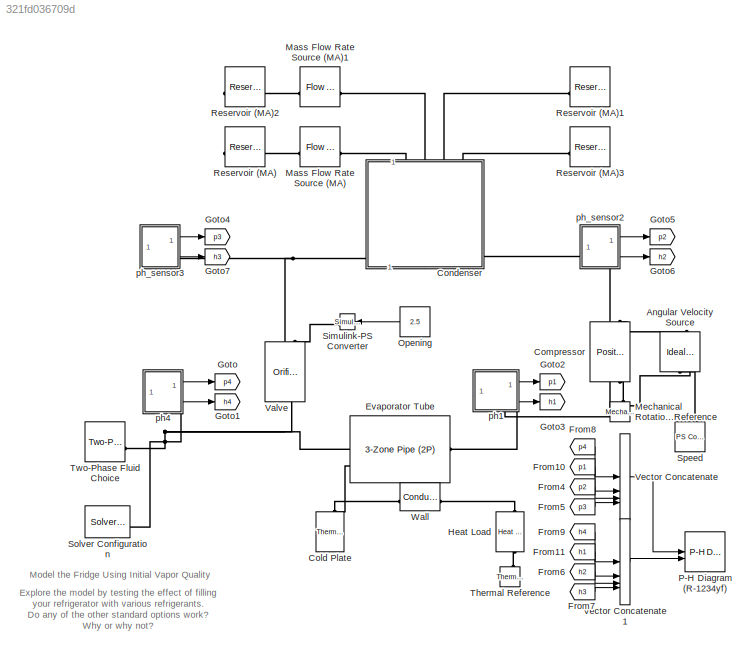
MODEL slx_321fd036709d
KIND model
CONFIG AbsTol = 1e-3
CONFIG EnableMultiTasking = off
CONFIG FixedStep = auto
CONFIG MaxStep = auto
CONFIG MinStep = auto
CONFIG RelTol = 1e-3
CONFIG SampleTimeConstraint = Unconstrained
CONFIG SolverName = VariableStepAuto
CONFIG StartTime = 0.0
CONFIG StopTime = 5000
BLOCK [Reference] Angular Velocity Source  REF=fl_lib/Mechanical/Mechanical Sources/Ideal Angular
Velocity Source
  NameLocation = right
  SourceBlock = fl_lib/Mechanical/Mechanical Sources/Ideal Angular\nVelocity Source
  SourceType = Ideal Angular\nVelocity Source
BLOCK [Reference] Cold Plate  REF=fl_lib/Thermal/Thermal Elements/Thermal Mass
  NameLocation = right
  SourceBlock = fl_lib/Thermal/Thermal Elements/Thermal Mass
  SourceType = Thermal Mass
BLOCK [Reference] Compressor  REF=SimscapeFluids_lib/Two-Phase Fluid/Fluid Machines/Positive-Displacement
Compressor (2P)
  NameLocation = left
  SourceBlock = SimscapeFluids_lib/Two-Phase Fluid/Fluid Machines/Positive-Displacement\nCompressor (2P)
  SourceType = Positive-Displacement\nCompressor (2P)
BLOCK [SubSystem] Condenser
  IC_spec = Vapor Quality
  NameLocation = right
  ReferencedSubsystem = Condenser_2Pass
  energy_spec = foundation.enum.energy_spec.quality
  h_init = h0_cond
  h_init_conf = compiletime
  h_init_unit = kJ/kg
  p_init = p0
  p_init_conf = compiletime
  p_init_unit = kPa
  x_init = x0
  x_init_conf = compiletime
BLOCK [Reference] Evaporator Tube  REF=SimscapeFluids_lib/Two-Phase Fluid/Pipes & Fittings/3-Zone Pipe (2P)
  NameLocation = top
  SourceBlock = SimscapeFluids_lib/Two-Phase Fluid/Pipes & Fittings/3-Zone Pipe (2P)
  SourceType = 3-Zone Pipe (2P)
BLOCK [From] From10
  GotoTag = p1
BLOCK [From] From11
  GotoTag = h1
BLOCK [From] From4
  GotoTag = p2
BLOCK [From] From5
  GotoTag = p3
BLOCK [From] From6
  GotoTag = h2
BLOCK [From] From7
  GotoTag = h3
BLOCK [From] From8
  GotoTag = p4
BLOCK [From] From9
  GotoTag = h4
BLOCK [Goto] Goto
  GotoTag = p4
BLOCK [Goto] Goto1
  GotoTag = h4
BLOCK [Goto] Goto2
  GotoTag = p1
BLOCK [Goto] Goto3
  GotoTag = h1
BLOCK [Goto] Goto4
  GotoTag = p3
BLOCK [Goto] Goto5
  GotoTag = p2
BLOCK [Goto] Goto6
  GotoTag = h2
BLOCK [Goto] Goto7
  GotoTag = h3
BLOCK [Reference] Heat Load  REF=fl_lib/Thermal/Thermal Sources/Heat Flow Rate
Source
  NameLocation = left
  SourceBlock = fl_lib/Thermal/Thermal Sources/Heat Flow Rate\nSource
  SourceType = Heat Flow Rate\nSource
BLOCK [Reference] Mass Flow Rate Source (MA)  REF=fl_lib/Moist Air/Sources/Flow Rate Source
(MA)
  NameLocation = top
  SourceBlock = fl_lib/Moist Air/Sources/Flow Rate Source\n(MA)
  SourceType = Flow Rate Source\n(MA)
BLOCK [Reference] Mass Flow Rate Source (MA)1  REF=fl_lib/Moist Air/Sources/Flow Rate Source
(MA)
  NameLocation = top
  SourceBlock = fl_lib/Moist Air/Sources/Flow Rate Source\n(MA)
  SourceType = Flow Rate Source\n(MA)
BLOCK [Reference] Mechanical Rotational Reference  REF=fl_lib/Mechanical/Rotational Elements/Mechanical
Rotational Reference
  NameLocation = right
  SourceBlock = fl_lib/Mechanical/Rotational Elements/Mechanical\nRotational Reference
  SourceType = Mechanical\nRotational Reference
BLOCK [Constant] Opening
  Value = 2.5
BLOCK [Reference] P-H Diagram (R-1234yf)  REF=SimscapeFluids_lib/Two-Phase Fluid/Utilities/P-H Diagram (2P)
  SourceBlock = SimscapeFluids_lib/Two-Phase Fluid/Utilities/P-H Diagram (2P)
  SourceType = P-H Diagram (2P)
  UserDataPersistent = on
BLOCK [Reference] Reservoir (MA)  REF=fl_lib/Moist Air/Elements/Reservoir (MA)
  NameLocation = top
  SourceBlock = fl_lib/Moist Air/Elements/Reservoir (MA)
  SourceType = Reservoir (MA)
BLOCK [Reference] Reservoir (MA)1  REF=fl_lib/Moist Air/Elements/Reservoir (MA)
  SourceBlock = fl_lib/Moist Air/Elements/Reservoir (MA)
  SourceType = Reservoir (MA)
BLOCK [Reference] Reservoir (MA)2  REF=fl_lib/Moist Air/Elements/Reservoir (MA)
  NameLocation = top
  SourceBlock = fl_lib/Moist Air/Elements/Reservoir (MA)
  SourceType = Reservoir (MA)
BLOCK [Reference] Reservoir (MA)3  REF=fl_lib/Moist Air/Elements/Reservoir (MA)
  SourceBlock = fl_lib/Moist Air/Elements/Reservoir (MA)
  SourceType = Reservoir (MA)
BLOCK [Reference] Simulink-PS Converter  REF=nesl_utility/Simulink-PS
Converter
  AttributesFormatString = %<Unit>
  SourceBlock = nesl_utility/Simulink-PS\nConverter
  SourceType = Simulink-PS\nConverter
BLOCK [Reference] Solver Configuration  REF=nesl_utility/Solver
Configuration
  SourceBlock = nesl_utility/Solver\nConfiguration
  SourceType = Solver\nConfiguration
BLOCK [Reference] Speed  REF=fl_lib/Physical Signals/Sources/PS Constant
  SourceBlock = fl_lib/Physical Signals/Sources/PS Constant
  SourceType = PS Constant
BLOCK [Reference] Thermal Reference  REF=fl_lib/Thermal/Thermal Elements/Thermal Reference
  NameLocation = right
  SourceBlock = fl_lib/Thermal/Thermal Elements/Thermal Reference
  SourceType = Thermal Reference
BLOCK [Reference] Two-Phase Fluid Choice  REF=SimscapeFluids_lib/Two-Phase Fluid/Utilities/Two-Phase Fluid
Predefined
Properties (2P)
  SourceBlock = SimscapeFluids_lib/Two-Phase Fluid/Utilities/Two-Phase Fluid\nPredefined\nProperties (2P)
  SourceType = Two-Phase Fluid\nPredefined\nProperties (2P)
BLOCK [Reference] Valve  REF=SimscapeFluids_lib/Two-Phase Fluid/Valves & Orifices/Orifice (2P)
  NameLocation = right
  SourceBlock = SimscapeFluids_lib/Two-Phase Fluid/Valves & Orifices/Orifice (2P)
  SourceType = Orifice (2P)
BLOCK [Concatenate] Vector Concatenate
  NumInputs = 4
BLOCK [Concatenate] Vector Concatenate1
  NumInputs = 4
BLOCK [Reference] Wall  REF=fl_lib/Thermal/Thermal Elements/Conductive Heat
Transfer
  SourceBlock = fl_lib/Thermal/Thermal Elements/Conductive Heat\nTransfer
  SourceType = Conductive Heat\nTransfer
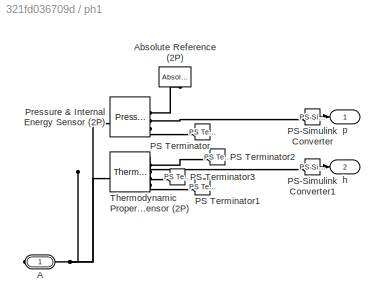
BLOCK [SubSystem] ph1
  NameLocation = top
  PortSchema = {"entries":[{"content":{"sides":[{"content":{"connectorIds":[]},"type":"ConnectorPlacement.EquallySpacedRectSide","uuid":"09a2fde7-9514-415f-ad1a-2358fbc90122"},{"content":{"connectorIds":["Out1","Out2"],"side":"RIGHT"},"type":"ConnectorPlacement.EquallySpacedRectSide","uuid":"1a58e595-65c2-481f-a4c6-044a1080df7a"},{"content":{"connectorIds":[],"side":"TOP"},"type":"ConnectorPlacement.EquallySpace...<+394ch>
BLOCK [PMIOPort] ph1/A
  Side = Right
BLOCK [Reference] ph1/Absolute Reference (2P)  REF=fl_lib/Two-Phase Fluid/Elements/Absolute Reference
(2P)
  NameLocation = left
  SourceBlock = fl_lib/Two-Phase Fluid/Elements/Absolute Reference\n(2P)
  SourceType = Absolute Reference\n(2P)
BLOCK [Reference] ph1/PS Terminator  REF=fl_lib/Physical Signals/Sinks/PS Terminator
  SourceBlock = fl_lib/Physical Signals/Sinks/PS Terminator
  SourceType = PS Terminator
BLOCK [Reference] ph1/PS Terminator1  REF=fl_lib/Physical Signals/Sinks/PS Terminator
  SourceBlock = fl_lib/Physical Signals/Sinks/PS Terminator
  SourceType = PS Terminator
BLOCK [Reference] ph1/PS Terminator2  REF=fl_lib/Physical Signals/Sinks/PS Terminator
  SourceBlock = fl_lib/Physical Signals/Sinks/PS Terminator
  SourceType = PS Terminator
BLOCK [Reference] ph1/PS Terminator3  REF=fl_lib/Physical Signals/Sinks/PS Terminator
  SourceBlock = fl_lib/Physical Signals/Sinks/PS Terminator
  SourceType = PS Terminator
BLOCK [Reference] ph1/PS-Simulink Converter  REF=nesl_utility/PS-Simulink
Converter
  SourceBlock = nesl_utility/PS-Simulink\nConverter
  SourceType = PS-Simulink\nConverter
BLOCK [Reference] ph1/PS-Simulink Converter1  REF=nesl_utility/PS-Simulink
Converter
  SourceBlock = nesl_utility/PS-Simulink\nConverter
  SourceType = PS-Simulink\nConverter
BLOCK [Reference] ph1/Pressure & Internal Energy Sensor (2P)  REF=fl_lib/Two-Phase Fluid/Sensors/Pressure,
Temperature &
Internal Energy
Sensor (2P)
  SourceBlock = fl_lib/Two-Phase Fluid/Sensors/Pressure,\nTemperature &\nInternal Energy\nSensor (2P)
  SourceType = Pressure,\nTemperature &\nInternal Energy\nSensor (2P)
BLOCK [Reference] ph1/Thermodynamic Properties Sensor (2P)  REF=fl_lib/Two-Phase Fluid/Sensors/Thermodynamic
Properties Sensor
(2P)
  SourceBlock = fl_lib/Two-Phase Fluid/Sensors/Thermodynamic\nProperties Sensor\n(2P)
  SourceType = Thermodynamic\nProperties Sensor\n(2P)
BLOCK [Outport] ph1/h
  Port = 2
BLOCK [Outport] ph1/p
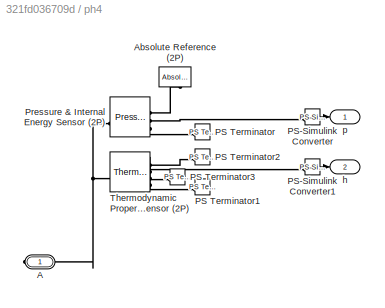
BLOCK [SubSystem] ph4
  NameLocation = top
  PortSchema = {"entries":[{"content":{"sides":[{"content":{"connectorIds":[]},"type":"ConnectorPlacement.EquallySpacedRectSide","uuid":"a2386ea4-012f-4d06-9e16-de8034e56d49"},{"content":{"connectorIds":["Out1","Out2"],"side":"RIGHT"},"type":"ConnectorPlacement.EquallySpacedRectSide","uuid":"4fc9eed4-9b91-4b18-836c-5d3d8d2a2391"},{"content":{"connectorIds":[],"side":"TOP"},"type":"ConnectorPlacement.EquallySpace...<+394ch>
BLOCK [PMIOPort] ph4/A
  Side = Right
BLOCK [Reference] ph4/Absolute Reference (2P)  REF=fl_lib/Two-Phase Fluid/Elements/Absolute Reference
(2P)
  NameLocation = left
  SourceBlock = fl_lib/Two-Phase Fluid/Elements/Absolute Reference\n(2P)
  SourceType = Absolute Reference\n(2P)
BLOCK [Reference] ph4/PS Terminator  REF=fl_lib/Physical Signals/Sinks/PS Terminator
  SourceBlock = fl_lib/Physical Signals/Sinks/PS Terminator
  SourceType = PS Terminator
BLOCK [Reference] ph4/PS Terminator1  REF=fl_lib/Physical Signals/Sinks/PS Terminator
  SourceBlock = fl_lib/Physical Signals/Sinks/PS Terminator
  SourceType = PS Terminator
BLOCK [Reference] ph4/PS Terminator2  REF=fl_lib/Physical Signals/Sinks/PS Terminator
  SourceBlock = fl_lib/Physical Signals/Sinks/PS Terminator
  SourceType = PS Terminator
BLOCK [Reference] ph4/PS Terminator3  REF=fl_lib/Physical Signals/Sinks/PS Terminator
  SourceBlock = fl_lib/Physical Signals/Sinks/PS Terminator
  SourceType = PS Terminator
BLOCK [Reference] ph4/PS-Simulink Converter  REF=nesl_utility/PS-Simulink
Converter
  SourceBlock = nesl_utility/PS-Simulink\nConverter
  SourceType = PS-Simulink\nConverter
BLOCK [Reference] ph4/PS-Simulink Converter1  REF=nesl_utility/PS-Simulink
Converter
  SourceBlock = nesl_utility/PS-Simulink\nConverter
  SourceType = PS-Simulink\nConverter
BLOCK [Reference] ph4/Pressure & Internal Energy Sensor (2P)  REF=fl_lib/Two-Phase Fluid/Sensors/Pressure,
Temperature &
Internal Energy
Sensor (2P)
  SourceBlock = fl_lib/Two-Phase Fluid/Sensors/Pressure,\nTemperature &\nInternal Energy\nSensor (2P)
  SourceType = Pressure,\nTemperature &\nInternal Energy\nSensor (2P)
BLOCK [Reference] ph4/Thermodynamic Properties Sensor (2P)  REF=fl_lib/Two-Phase Fluid/Sensors/Thermodynamic
Properties Sensor
(2P)
  SourceBlock = fl_lib/Two-Phase Fluid/Sensors/Thermodynamic\nProperties Sensor\n(2P)
  SourceType = Thermodynamic\nProperties Sensor\n(2P)
BLOCK [Outport] ph4/h
  Port = 2
BLOCK [Outport] ph4/p
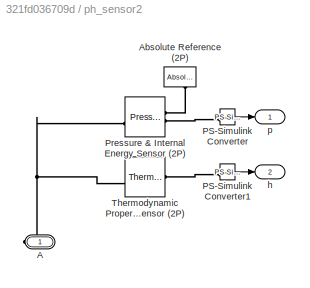
BLOCK [SubSystem] ph_sensor2
  NameLocation = top
  PortSchema = {"entries":[{"content":{"sides":[{"content":{"connectorIds":[]},"type":"ConnectorPlacement.EquallySpacedRectSide","uuid":"41884682-286e-4d7b-b79e-2bb874be6d6c"},{"content":{"connectorIds":["Out1","Out2"],"side":"RIGHT"},"type":"ConnectorPlacement.EquallySpacedRectSide","uuid":"e56675d9-2074-4825-bab9-53a77e88fae1"},{"content":{"connectorIds":[],"side":"TOP"},"type":"ConnectorPlacement.EquallySpace...<+394ch>
BLOCK [PMIOPort] ph_sensor2/A
  Side = Right
BLOCK [Reference] ph_sensor2/Absolute Reference (2P)  REF=fl_lib/Two-Phase Fluid/Elements/Absolute Reference
(2P)
  NameLocation = left
  SourceBlock = fl_lib/Two-Phase Fluid/Elements/Absolute Reference\n(2P)
  SourceType = Absolute Reference\n(2P)
BLOCK [Reference] ph_sensor2/PS-Simulink Converter  REF=nesl_utility/PS-Simulink
Converter
  AttributesFormatString = %<Unit>
  SourceBlock = nesl_utility/PS-Simulink\nConverter
  SourceType = PS-Simulink\nConverter
BLOCK [Reference] ph_sensor2/PS-Simulink Converter1  REF=nesl_utility/PS-Simulink
Converter
  AttributesFormatString = %<Unit>
  SourceBlock = nesl_utility/PS-Simulink\nConverter
  SourceType = PS-Simulink\nConverter
BLOCK [Reference] ph_sensor2/Pressure & Internal Energy Sensor (2P)  REF=fl_lib/Two-Phase Fluid/Sensors/Pressure,
Temperature &
Internal Energy
Sensor (2P)
  SourceBlock = fl_lib/Two-Phase Fluid/Sensors/Pressure,\nTemperature &\nInternal Energy\nSensor (2P)
  SourceType = Pressure,\nTemperature &\nInternal Energy\nSensor (2P)
BLOCK [Reference] ph_sensor2/Thermodynamic Properties Sensor (2P)  REF=fl_lib/Two-Phase Fluid/Sensors/Thermodynamic
Properties Sensor
(2P)
  SourceBlock = fl_lib/Two-Phase Fluid/Sensors/Thermodynamic\nProperties Sensor\n(2P)
  SourceType = Thermodynamic\nProperties Sensor\n(2P)
BLOCK [Outport] ph_sensor2/h
  Port = 2
BLOCK [Outport] ph_sensor2/p
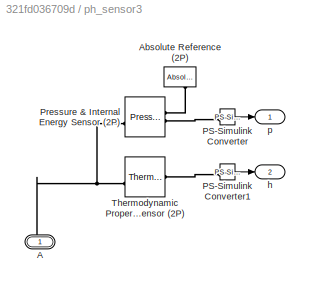
BLOCK [SubSystem] ph_sensor3
  NameLocation = top
  PortSchema = {"entries":[{"content":{"sides":[{"content":{"connectorIds":[]},"type":"ConnectorPlacement.EquallySpacedRectSide","uuid":"41884682-286e-4d7b-b79e-2bb874be6d6c"},{"content":{"connectorIds":["Out1","Out2"],"side":"RIGHT"},"type":"ConnectorPlacement.EquallySpacedRectSide","uuid":"e56675d9-2074-4825-bab9-53a77e88fae1"},{"content":{"connectorIds":[],"side":"TOP"},"type":"ConnectorPlacement.EquallySpace...<+394ch>
BLOCK [PMIOPort] ph_sensor3/A
  Side = Right
BLOCK [Reference] ph_sensor3/Absolute Reference (2P)  REF=fl_lib/Two-Phase Fluid/Elements/Absolute Reference
(2P)
  NameLocation = left
  SourceBlock = fl_lib/Two-Phase Fluid/Elements/Absolute Reference\n(2P)
  SourceType = Absolute Reference\n(2P)
BLOCK [Reference] ph_sensor3/PS-Simulink Converter  REF=nesl_utility/PS-Simulink
Converter
  AttributesFormatString = %<Unit>
  SourceBlock = nesl_utility/PS-Simulink\nConverter
  SourceType = PS-Simulink\nConverter
BLOCK [Reference] ph_sensor3/PS-Simulink Converter1  REF=nesl_utility/PS-Simulink
Converter
  AttributesFormatString = %<Unit>
  SourceBlock = nesl_utility/PS-Simulink\nConverter
  SourceType = PS-Simulink\nConverter
BLOCK [Reference] ph_sensor3/Pressure & Internal Energy Sensor (2P)  REF=fl_lib/Two-Phase Fluid/Sensors/Pressure,
Temperature &
Internal Energy
Sensor (2P)
  SourceBlock = fl_lib/Two-Phase Fluid/Sensors/Pressure,\nTemperature &\nInternal Energy\nSensor (2P)
  SourceType = Pressure,\nTemperature &\nInternal Energy\nSensor (2P)
BLOCK [Reference] ph_sensor3/Thermodynamic Properties Sensor (2P)  REF=fl_lib/Two-Phase Fluid/Sensors/Thermodynamic
Properties Sensor
(2P)
  SourceBlock = fl_lib/Two-Phase Fluid/Sensors/Thermodynamic\nProperties Sensor\n(2P)
  SourceType = Thermodynamic\nProperties Sensor\n(2P)
BLOCK [Outport] ph_sensor3/h
  Port = 2
BLOCK [Outport] ph_sensor3/p
ANNOTATION (root): Explore the model by testing the effect of filling your refrigerator with various refrigerants. Do any of the other standard options work? Why or why not?
ANNOTATION (root): Model the Fridge Using Initial Vapor Quality
LINE From10:1 -> Vector Concatenate:2
LINE From11:1 -> Vector Concatenate1:2
LINE From4:1 -> Vector Concatenate:3
LINE From5:1 -> Vector Concatenate:4
LINE From6:1 -> Vector Concatenate1:3
LINE From7:1 -> Vector Concatenate1:4
LINE From8:1 -> Vector Concatenate:1
LINE From9:1 -> Vector Concatenate1:1
LINE Opening:1 -> Simulink-PS Converter:1
LINE Vector Concatenate1:1 -> P-H Diagram (R-1234yf):2
LINE Vector Concatenate:1 -> P-H Diagram (R-1234yf):1
LINE ph1/PS-Simulink Converter1:1 -> ph1/h:1
LINE ph1/PS-Simulink Converter:1 -> ph1/p:1
LINE ph1:1 -> Goto2:1
LINE ph1:2 -> Goto3:1
LINE ph4/PS-Simulink Converter1:1 -> ph4/h:1
LINE ph4/PS-Simulink Converter:1 -> ph4/p:1
LINE ph4:1 -> Goto:1
LINE ph4:2 -> Goto1:1
LINE ph_sensor2/PS-Simulink Converter1:1 -> ph_sensor2/h:1
LINE ph_sensor2/PS-Simulink Converter:1 -> ph_sensor2/p:1
LINE ph_sensor2:1 -> Goto5:1
LINE ph_sensor2:2 -> Goto6:1
LINE ph_sensor3/PS-Simulink Converter1:1 -> ph_sensor3/h:1
LINE ph_sensor3/PS-Simulink Converter:1 -> ph_sensor3/p:1
LINE ph_sensor3:1 -> Goto4:1
LINE ph_sensor3:2 -> Goto7:1
PLINE Angular Velocity Source:LConn1 -- Compressor:RConn2
PLINE Angular Velocity Source:RConn1 -- Speed:RConn1
PNET net1: Angular Velocity Source:RConn2 -- Compressor:LConn2 -- Mechanical Rotational Reference:LConn1
PNET net2: Cold Plate:LConn1 -- Evaporator Tube:LConn2 -- Wall:LConn1
PNET net3: Compressor:LConn1 -- Evaporator Tube:RConn1 -- ph1:RConn1
PNET net4: Compressor:RConn1 -- Condenser:LConn2 -- ph_sensor2:RConn1
PNET net5: Condenser:LConn1 -- Valve:LConn1 -- ph_sensor3:RConn1
PLINE Condenser:RConn1 -- Mass Flow Rate Source (MA):RConn1
PLINE Condenser:RConn2 -- Mass Flow Rate Source (MA)1:RConn1
PLINE Condenser:RConn3 -- Reservoir (MA)1:LConn1
PLINE Condenser:RConn4 -- Reservoir (MA)3:LConn1
PNET net6: Evaporator Tube:LConn1 -- Solver Configuration:RConn1 -- Two-Phase Fluid Choice:RConn1 -- Valve:RConn1 -- ph4:RConn1
PLINE Heat Load:LConn1 -- Wall:RConn1
PLINE Heat Load:RConn1 -- Thermal Reference:LConn1
PLINE Mass Flow Rate Source (MA)1:LConn1 -- Reservoir (MA)2:LConn1
PLINE Mass Flow Rate Source (MA):LConn1 -- Reservoir (MA):LConn1
PLINE Simulink-PS Converter:RConn1 -- Valve:LConn2
PNET net7: ph1/A:RConn1 -- ph1/Pressure & Internal Energy Sensor (2P):LConn1 -- ph1/Thermodynamic Properties Sensor (2P):LConn1
PLINE ph1/Absolute Reference (2P):LConn1 -- ph1/Pressure & Internal Energy Sensor (2P):RConn1
PLINE ph1/PS Terminator1:LConn1 -- ph1/Thermodynamic Properties Sensor (2P):RConn4
PLINE ph1/PS Terminator2:LConn1 -- ph1/Thermodynamic Properties Sensor (2P):RConn1
PLINE ph1/PS Terminator3:LConn1 -- ph1/Thermodynamic Properties Sensor (2P):RConn3
PLINE ph1/PS Terminator:LConn1 -- ph1/Pressure & Internal Energy Sensor (2P):RConn3
PLINE ph1/PS-Simulink Converter1:LConn1 -- ph1/Thermodynamic Properties Sensor (2P):RConn2
PLINE ph1/PS-Simulink Converter:LConn1 -- ph1/Pressure & Internal Energy Sensor (2P):RConn2
PNET net8: ph4/A:RConn1 -- ph4/Pressure & Internal Energy Sensor (2P):LConn1 -- ph4/Thermodynamic Properties Sensor (2P):LConn1
PLINE ph4/Absolute Reference (2P):LConn1 -- ph4/Pressure & Internal Energy Sensor (2P):RConn1
PLINE ph4/PS Terminator1:LConn1 -- ph4/Thermodynamic Properties Sensor (2P):RConn4
PLINE ph4/PS Terminator2:LConn1 -- ph4/Thermodynamic Properties Sensor (2P):RConn1
PLINE ph4/PS Terminator3:LConn1 -- ph4/Thermodynamic Properties Sensor (2P):RConn3
PLINE ph4/PS Terminator:LConn1 -- ph4/Pressure & Internal Energy Sensor (2P):RConn3
PLINE ph4/PS-Simulink Converter1:LConn1 -- ph4/Thermodynamic Properties Sensor (2P):RConn2
PLINE ph4/PS-Simulink Converter:LConn1 -- ph4/Pressure & Internal Energy Sensor (2P):RConn2
PNET net9: ph_sensor2/A:RConn1 -- ph_sensor2/Pressure & Internal Energy Sensor (2P):LConn1 -- ph_sensor2/Thermodynamic Properties Sensor (2P):LConn1
PLINE ph_sensor2/Absolute Reference (2P):LConn1 -- ph_sensor2/Pressure & Internal Energy Sensor (2P):RConn1
PLINE ph_sensor2/PS-Simulink Converter1:LConn1 -- ph_sensor2/Thermodynamic Properties Sensor (2P):RConn2
PLINE ph_sensor2/PS-Simulink Converter:LConn1 -- ph_sensor2/Pressure & Internal Energy Sensor (2P):RConn2
PNET net10: ph_sensor3/A:RConn1 -- ph_sensor3/Pressure & Internal Energy Sensor (2P):LConn1 -- ph_sensor3/Thermodynamic Properties Sensor (2P):LConn1
PLINE ph_sensor3/Absolute Reference (2P):LConn1 -- ph_sensor3/Pressure & Internal Energy Sensor (2P):RConn1
PLINE ph_sensor3/PS-Simulink Converter1:LConn1 -- ph_sensor3/Thermodynamic Properties Sensor (2P):RConn2
PLINE ph_sensor3/PS-Simulink Converter:LConn1 -- ph_sensor3/Pressure & Internal Energy Sensor (2P):RConn2
note: PNET lines group multi-terminal physical nets as a canonical sorted terminal list (undirected conserving connections); 2-terminal nets keep the pairwise PLINE form
